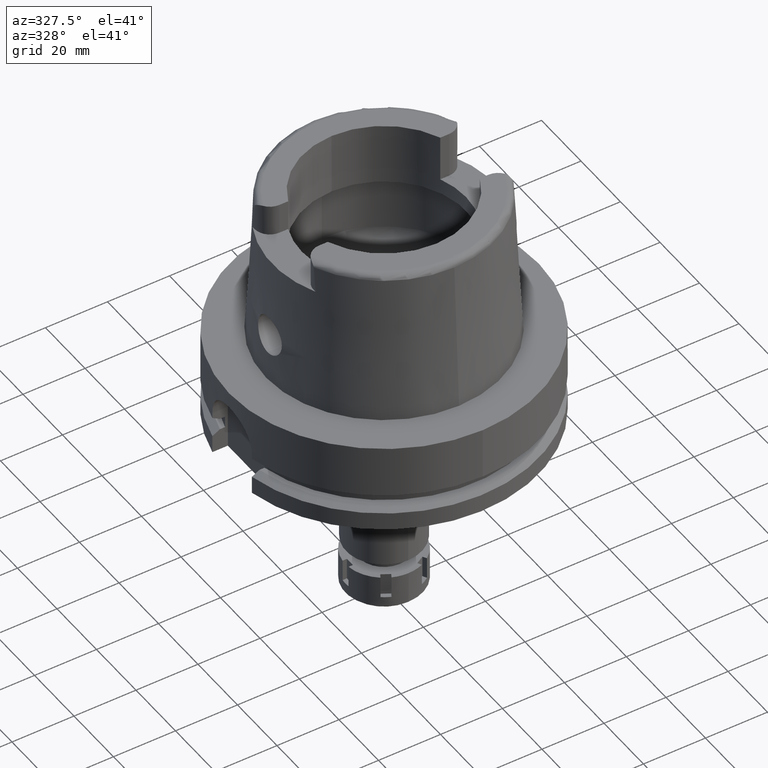
[diagram: clean part render]
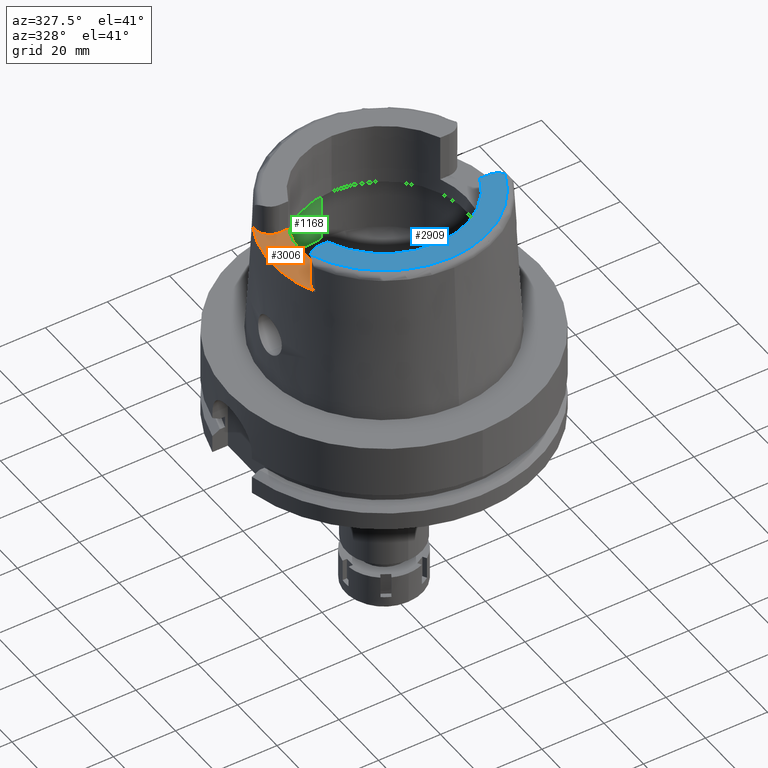
[diagram: same view with three faces highlighted in distinct colors, each labeled with its STEP entity id]
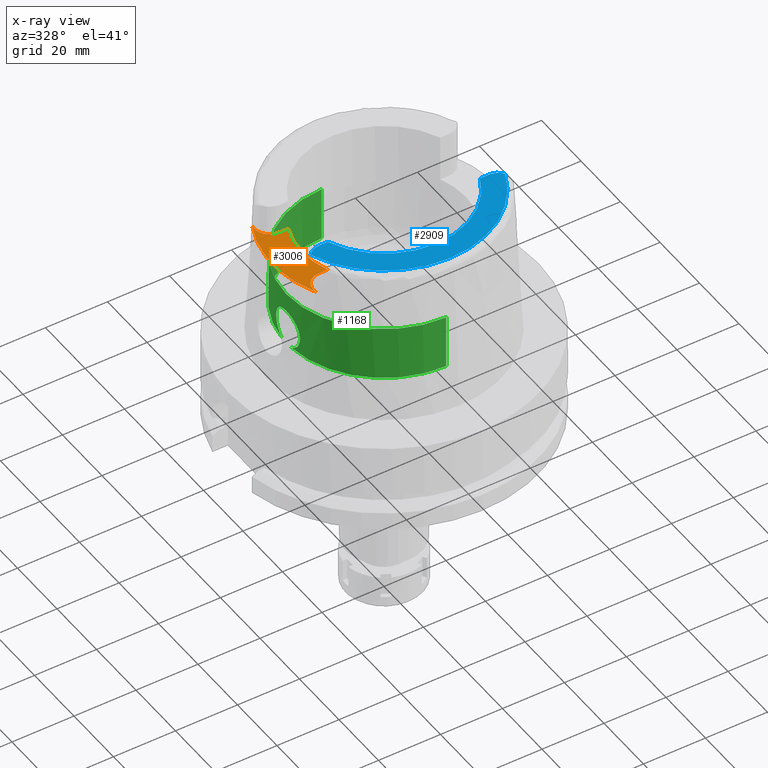
[diagram: x-ray of the same camera — body ghosted, the three highlighted faces saturated]
A machine part, auxiliary view with three faces highlighted in distinct colors.
The next image is the same camera in x-ray (body ghosted, the three faces saturated) — at least one of them is partly hidden behind the body in this view.
Their STEP definitions:

[orange] entity #3006 — the highlighted planar face has unit normal (0, 0, 1).
#35 = DIRECTION ( 'NONE',  ( 1.000000000000000000, 1.442003377036999905E-13, 0.0000000000000000000 ) ) ;
#81 = EDGE_CURVE ( 'NONE', #5457, #1436, #5247, .T. ) ;
#135 = ORIENTED_EDGE ( 'NONE', *, *, #770, .F. ) ;
#330 = ORIENTED_EDGE ( 'NONE', *, *, #2232, .F. ) ;
#358 = VECTOR ( 'NONE', #35, 1000.000000000000000 ) ;
#403 = DIRECTION ( 'NONE',  ( 0.0000000000000000000, 0.0000000000000000000, 1.000000000000000000 ) ) ;
#420 = CARTESIAN_POINT ( 'NONE',  ( -32.25000000000000000, -14.89000000000000057, 40.00000000000000000 ) ) ;
#422 = CARTESIAN_POINT ( 'NONE',  ( -32.24999999999000266, 15.99793480980999938, 40.00000000000000000 ) ) ;
#465 = CARTESIAN_POINT ( 'NONE',  ( -27.36999999999999744, 10.00999999999999979, 40.00000000000000000 ) ) ;
#525 = VERTEX_POINT ( 'NONE', #2066 ) ;
#636 = CARTESIAN_POINT ( 'NONE',  ( -24.53670515777999839, 10.00999999999999979, 40.00000000000000000 ) ) ;
#723 = ORIENTED_EDGE ( 'NONE', *, *, #81, .F. ) ;
#767 = CARTESIAN_POINT ( 'NONE',  ( 0.0000000000000000000, 0.0000000000000000000, 40.00000000000000000 ) ) ;
#770 = EDGE_CURVE ( 'NONE', #3933, #1331, #4884, .T. ) ;
#830 = CARTESIAN_POINT ( 'NONE',  ( 0.0000000000000000000, 0.0000000000000000000, 40.00000000000000000 ) ) ;
#837 = LINE ( 'NONE', #2716, #4207 ) ;
#934 = VECTOR ( 'NONE', #2135, 1000.000000000000000 ) ;
#1031 = AXIS2_PLACEMENT_3D ( 'NONE', #3721, #403, #2742 ) ;
#1164 = CARTESIAN_POINT ( 'NONE',  ( -32.24999876011999334, -15.99794043148000000, 40.00000000000000000 ) ) ;
#1191 = CIRCLE ( 'NONE', #5459, 26.50000000000000711 ) ;
#1265 = EDGE_CURVE ( 'NONE', #4605, #3933, #5700, .T. ) ;
#1331 = VERTEX_POINT ( 'NONE', #422 ) ;
#1436 = VERTEX_POINT ( 'NONE', #636 ) ;
#1441 = CARTESIAN_POINT ( 'NONE',  ( 0.0000000000000000000, 0.0000000000000000000, 40.00000000000000000 ) ) ;
#1527 = AXIS2_PLACEMENT_3D ( 'NONE', #767, #2285, #3239 ) ;
#1676 = EDGE_LOOP ( 'NONE', ( #723, #330, #3696, #135, #4647, #3988, #5839, #5504 ) ) ;
#1722 = CIRCLE ( 'NONE', #1031, 4.880000000000002558 ) ;
#2058 = EDGE_CURVE ( 'NONE', #1331, #5209, #837, .T. ) ;
#2066 = CARTESIAN_POINT ( 'NONE',  ( -27.36999999999999744, -10.00999999999999979, 40.00000000000000000 ) ) ;
#2135 = DIRECTION ( 'NONE',  ( -1.000000000000000000, 1.435733797136999970E-13, 0.0000000000000000000 ) ) ;
#2162 = LINE ( 'NONE', #3053, #934 ) ;
#2232 = EDGE_CURVE ( 'NONE', #5209, #5457, #1722, .T. ) ;
#2244 = CARTESIAN_POINT ( 'NONE',  ( -27.36999999999999744, -14.89000000000000057, 40.00000000000000000 ) ) ;
#2285 = DIRECTION ( 'NONE',  ( 0.0000000000000000000, 0.0000000000000000000, -1.000000000000000000 ) ) ;
#2329 = VERTEX_POINT ( 'NONE', #3959 ) ;
#2338 = DIRECTION ( 'NONE',  ( 1.119083709707969931E-06, -0.9999999999993738342, -1.731560047848954504E-13 ) ) ;
#2492 = EDGE_CURVE ( 'NONE', #2329, #525, #2162, .T. ) ;
#2604 = VECTOR ( 'NONE', #2338, 1000.000000000000000 ) ;
#2695 = EDGE_CURVE ( 'NONE', #1436, #2329, #1191, .T. ) ;
#2709 = DIRECTION ( 'NONE',  ( 0.0000000000000000000, 0.0000000000000000000, 1.000000000000000000 ) ) ;
#2716 = CARTESIAN_POINT ( 'NONE',  ( -32.25000534596000534, 15.99791057084999935, 40.00000000000000000 ) ) ;
#2742 = DIRECTION ( 'NONE',  ( -1.000000000000000000, -1.173071203017102553E-14, 0.0000000000000000000 ) ) ;
#2753 = DIRECTION ( 'NONE',  ( 0.0000000000000000000, 1.000000000000000000, 0.0000000000000000000 ) ) ;
#2757 = CARTESIAN_POINT ( 'NONE',  ( -32.25000000000000000, -14.89000000000000057, 40.00000000000000000 ) ) ;
#3006 = ADVANCED_FACE ( 'NONE', ( #3796 ), #5698, .T. ) ;
#3053 = CARTESIAN_POINT ( 'NONE',  ( -24.53670515777999839, -10.00999999999999979, 40.00000000000000000 ) ) ;
#3239 = DIRECTION ( 'NONE',  ( -0.8958345712659759874, -0.4443876921390880197, 0.0000000000000000000 ) ) ;
#3331 = DIRECTION ( 'NONE',  ( 0.0000000000000000000, 0.0000000000000000000, 1.000000000000000000 ) ) ;
#3472 = AXIS2_PLACEMENT_3D ( 'NONE', #2244, #4198, #2753 ) ;
#3696 = ORIENTED_EDGE ( 'NONE', *, *, #2058, .F. ) ;
#3721 = CARTESIAN_POINT ( 'NONE',  ( -27.36999999999999744, 14.89000000000000057, 40.00000000000000000 ) ) ;
#3796 = FACE_OUTER_BOUND ( 'NONE', #1676, .T. ) ;
#3933 = VERTEX_POINT ( 'NONE', #1164 ) ;
#3959 = CARTESIAN_POINT ( 'NONE',  ( -24.53670515777999839, -10.00999999999999979, 40.00000000000000000 ) ) ;
#3988 = ORIENTED_EDGE ( 'NONE', *, *, #5650, .F. ) ;
#4198 = DIRECTION ( 'NONE',  ( 0.0000000000000000000, 0.0000000000000000000, 1.000000000000000000 ) ) ;
#4207 = VECTOR ( 'NONE', #4623, 1000.000000000000114 ) ;
#4413 = CARTESIAN_POINT ( 'NONE',  ( -27.36999999999999744, 10.00999999999999979, 40.00000000000000000 ) ) ;
#4605 = VERTEX_POINT ( 'NONE', #420 ) ;
#4615 = DIRECTION ( 'NONE',  ( -0.9259134021805098813, 0.3777358490566039562, 0.0000000000000000000 ) ) ;
#4623 = DIRECTION ( 'NONE',  ( 4.825266097350802439E-06, -0.9999999999883583124, 1.731606717192930698E-13 ) ) ;
#4647 = ORIENTED_EDGE ( 'NONE', *, *, #1265, .F. ) ;
#4884 = CIRCLE ( 'NONE', #1527, 35.99995025243999436 ) ;
#5043 = AXIS2_PLACEMENT_3D ( 'NONE', #1441, #3331, #5227 ) ;
#5209 = VERTEX_POINT ( 'NONE', #5453 ) ;
#5227 = DIRECTION ( 'NONE',  ( 1.000000000000000000, 0.0000000000000000000, 0.0000000000000000000 ) ) ;
#5247 = LINE ( 'NONE', #4413, #358 ) ;
#5354 = CIRCLE ( 'NONE', #3472, 4.879999999999999005 ) ;
#5453 = CARTESIAN_POINT ( 'NONE',  ( -32.25000000000000000, 14.89000000000000057, 40.00000000000000000 ) ) ;
#5457 = VERTEX_POINT ( 'NONE', #465 ) ;
#5459 = AXIS2_PLACEMENT_3D ( 'NONE', #830, #2709, #4615 ) ;
#5504 = ORIENTED_EDGE ( 'NONE', *, *, #2695, .F. ) ;
#5650 = EDGE_CURVE ( 'NONE', #525, #4605, #5354, .T. ) ;
#5698 = PLANE ( 'NONE',  #5043 ) ;
#5700 = LINE ( 'NONE', #2757, #2604 ) ;
#5839 = ORIENTED_EDGE ( 'NONE', *, *, #2492, .F. ) ;

[blue] entity #2909 — the highlighted planar face has unit normal (0, 0, 1).
#56 = EDGE_CURVE ( 'NONE', #4841, #4735, #5213, .T. ) ;
#99 = CARTESIAN_POINT ( 'NONE',  ( 0.0000000000000000000, -26.50000000000000000, 50.00000000000000000 ) ) ;
#240 = CARTESIAN_POINT ( 'NONE',  ( 27.36999999999999744, -10.00999999999999979, 50.00000000000000000 ) ) ;
#307 = EDGE_CURVE ( 'NONE', #312, #4841, #329, .T. ) ;
#312 = VERTEX_POINT ( 'NONE', #1918 ) ;
#322 = EDGE_CURVE ( 'NONE', #2450, #2839, #3813, .T. ) ;
#329 = CIRCLE ( 'NONE', #2115, 4.879999999999999005 ) ;
#446 = CARTESIAN_POINT ( 'NONE',  ( 0.0000000000000000000, 0.0000000000000000000, 50.00000000000000000 ) ) ;
#510 = AXIS2_PLACEMENT_3D ( 'NONE', #4725, #876, #2756 ) ;
#876 = DIRECTION ( 'NONE',  ( 0.0000000000000000000, 0.0000000000000000000, 1.000000000000000000 ) ) ;
#983 = DIRECTION ( 'NONE',  ( -0.8163632566568778115, 0.5775387720149849358, 0.0000000000000000000 ) ) ;
#1340 = DIRECTION ( 'NONE',  ( 0.0000000000000000000, 0.0000000000000000000, 1.000000000000000000 ) ) ;
#1361 = CARTESIAN_POINT ( 'NONE',  ( -27.36999999999999744, -14.89000000000000057, 50.00000000000000000 ) ) ;
#1369 = ORIENTED_EDGE ( 'NONE', *, *, #307, .F. ) ;
#1425 = DIRECTION ( 'NONE',  ( 0.0000000000000000000, 1.000000000000000000, 0.0000000000000000000 ) ) ;
#1595 = CIRCLE ( 'NONE', #5065, 26.50000000000000711 ) ;
#1786 = CARTESIAN_POINT ( 'NONE',  ( -24.53670515777999839, -10.00999999999999979, 50.00000000000000000 ) ) ;
#1918 = CARTESIAN_POINT ( 'NONE',  ( 27.36999999999999744, -10.00999999999999979, 50.00000000000000000 ) ) ;
#1976 = DIRECTION ( 'NONE',  ( -1.000000000000000000, 1.442003377036999905E-13, 0.0000000000000000000 ) ) ;
#2031 = AXIS2_PLACEMENT_3D ( 'NONE', #2422, #4781, #4318 ) ;
#2085 = ORIENTED_EDGE ( 'NONE', *, *, #322, .T. ) ;
#2093 = EDGE_CURVE ( 'NONE', #4735, #2839, #6100, .T. ) ;
#2106 = ORIENTED_EDGE ( 'NONE', *, *, #4673, .F. ) ;
#2115 = AXIS2_PLACEMENT_3D ( 'NONE', #3434, #5381, #1425 ) ;
#2190 = AXIS2_PLACEMENT_3D ( 'NONE', #3202, #6103, #4167 ) ;
#2206 = ORIENTED_EDGE ( 'NONE', *, *, #2093, .F. ) ;
#2422 = CARTESIAN_POINT ( 'NONE',  ( 0.0000000000000000000, 0.0000000000000000000, 50.00000000000000000 ) ) ;
#2450 = VERTEX_POINT ( 'NONE', #1786 ) ;
#2567 = ORIENTED_EDGE ( 'NONE', *, *, #3864, .T. ) ;
#2756 = DIRECTION ( 'NONE',  ( 1.000000000000000000, 0.0000000000000000000, 0.0000000000000000000 ) ) ;
#2839 = VERTEX_POINT ( 'NONE', #3365 ) ;
#2909 = ADVANCED_FACE ( 'NONE', ( #5633 ), #5131, .T. ) ;
#3062 = VECTOR ( 'NONE', #3522, 1000.000000000000000 ) ;
#3125 = VERTEX_POINT ( 'NONE', #99 ) ;
#3202 = CARTESIAN_POINT ( 'NONE',  ( 0.0000000000000000000, 0.0000000000000000000, 50.00000000000000000 ) ) ;
#3207 = AXIS2_PLACEMENT_3D ( 'NONE', #1361, #3283, #983 ) ;
#3215 = CARTESIAN_POINT ( 'NONE',  ( 24.53670515777999839, -10.00999999999999979, 50.00000000000000000 ) ) ;
#3283 = DIRECTION ( 'NONE',  ( 0.0000000000000000000, 0.0000000000000000000, -1.000000000000000000 ) ) ;
#3365 = CARTESIAN_POINT ( 'NONE',  ( -27.36999999999999744, -10.00999999999999979, 50.00000000000000000 ) ) ;
#3405 = CARTESIAN_POINT ( 'NONE',  ( -24.53670515777999839, -10.00999999999999979, 50.00000000000000000 ) ) ;
#3434 = CARTESIAN_POINT ( 'NONE',  ( 27.36999999999999744, -14.89000000000000057, 50.00000000000000000 ) ) ;
#3522 = DIRECTION ( 'NONE',  ( -1.000000000000000000, -1.454542536837999925E-13, 0.0000000000000000000 ) ) ;
#3813 = LINE ( 'NONE', #3405, #4977 ) ;
#3851 = ORIENTED_EDGE ( 'NONE', *, *, #4933, .F. ) ;
#3864 = EDGE_CURVE ( 'NONE', #312, #5433, #5039, .T. ) ;
#4167 = DIRECTION ( 'NONE',  ( 0.0000000000000000000, -1.000000000000000000, 0.0000000000000000000 ) ) ;
#4318 = DIRECTION ( 'NONE',  ( 0.9332215253017949186, -0.3593015233941980191, 0.0000000000000000000 ) ) ;
#4353 = CARTESIAN_POINT ( 'NONE',  ( -31.35385269249000473, -12.07161079256999869, 50.00000000000000000 ) ) ;
#4564 = EDGE_LOOP ( 'NONE', ( #5624, #1369, #2567, #2106, #3851, #2085, #2206 ) ) ;
#4673 = EDGE_CURVE ( 'NONE', #3125, #5433, #5265, .T. ) ;
#4691 = CARTESIAN_POINT ( 'NONE',  ( 31.35385269249000473, -12.07161079256999869, 50.00000000000000000 ) ) ;
#4725 = CARTESIAN_POINT ( 'NONE',  ( 0.0000000000000000000, 0.0000000000000000000, 50.00000000000000000 ) ) ;
#4735 = VERTEX_POINT ( 'NONE', #4353 ) ;
#4781 = DIRECTION ( 'NONE',  ( 0.0000000000000000000, 0.0000000000000000000, -1.000000000000000000 ) ) ;
#4841 = VERTEX_POINT ( 'NONE', #4691 ) ;
#4933 = EDGE_CURVE ( 'NONE', #2450, #3125, #1595, .T. ) ;
#4977 = VECTOR ( 'NONE', #1976, 1000.000000000000000 ) ;
#5039 = LINE ( 'NONE', #240, #3062 ) ;
#5065 = AXIS2_PLACEMENT_3D ( 'NONE', #446, #1340, #6030 ) ;
#5131 = PLANE ( 'NONE',  #510 ) ;
#5213 = CIRCLE ( 'NONE', #2031, 33.59743838135999994 ) ;
#5265 = CIRCLE ( 'NONE', #2190, 26.50000000000000000 ) ;
#5381 = DIRECTION ( 'NONE',  ( 0.0000000000000000000, 0.0000000000000000000, -1.000000000000000000 ) ) ;
#5433 = VERTEX_POINT ( 'NONE', #3215 ) ;
#5624 = ORIENTED_EDGE ( 'NONE', *, *, #56, .F. ) ;
#5633 = FACE_OUTER_BOUND ( 'NONE', #4564, .T. ) ;
#6030 = DIRECTION ( 'NONE',  ( -0.9259134021805098813, -0.3777358490566039562, 0.0000000000000000000 ) ) ;
#6100 = CIRCLE ( 'NONE', #3207, 4.880000000000001670 ) ;
#6103 = DIRECTION ( 'NONE',  ( 0.0000000000000000000, 0.0000000000000000000, 1.000000000000000000 ) ) ;

[green] entity #1168 — the highlighted cylindrical surface (partial cylindrical patch) has radius 31.5 mm, axis along (0, 0, 1).
#8 = AXIS2_PLACEMENT_3D ( 'NONE', #2917, #5253, #541 ) ;
#21 = CARTESIAN_POINT ( 'NONE',  ( -31.47874576205621366, -1.163164667398491892, 20.88863052712523327 ) ) ;
#57 = CARTESIAN_POINT ( 'NONE',  ( -31.35601783974591683, -3.006815720286887927, 20.19503842170220409 ) ) ;
#102 = CARTESIAN_POINT ( 'NONE',  ( -30.94471645955824002, 5.888636474618355265, 16.15098327759531216 ) ) ;
#117 = CARTESIAN_POINT ( 'NONE',  ( -31.27265209056451312, -3.777709567707239646, 19.66144031637848499 ) ) ;
#146 = CARTESIAN_POINT ( 'NONE',  ( -31.04449650653337045, -5.337616494897189590, 12.25957888859942102 ) ) ;
#162 = CARTESIAN_POINT ( 'NONE',  ( -31.28064360406172639, 3.709026607153624866, 10.28274522997729967 ) ) ;
#173 = CARTESIAN_POINT ( 'NONE',  ( -31.07990292945990518, -5.127433926418876631, 18.11601709967759177 ) ) ;
#188 = CARTESIAN_POINT ( 'NONE',  ( -31.23333518499545391, 4.089872077769675762, 10.60987740590880435 ) ) ;
#204 = CARTESIAN_POINT ( 'NONE',  ( -30.92613444810705303, -5.986400588430251801, 15.52780896318722093 ) ) ;
#221 = CARTESIAN_POINT ( 'NONE',  ( -30.94201439792267294, 5.902945667035329080, 13.92002647119419123 ) ) ;
#236 = CARTESIAN_POINT ( 'NONE',  ( -30.99449541047082590, -5.622045063139270660, 12.89669549586074915 ) ) ;
#279 = CARTESIAN_POINT ( 'NONE',  ( -31.42878496215235273, 2.115845638463134559, 20.61478128232596774 ) ) ;
#311 = CARTESIAN_POINT ( 'NONE',  ( -31.26626258548840553, 3.829281940749599933, 19.61924281483721089 ) ) ;
#344 = CARTESIAN_POINT ( 'NONE',  ( -31.10650468077717434, 4.964778793534160073, 18.37349596803345264 ) ) ;
#522 = CARTESIAN_POINT ( 'NONE',  ( -31.47210381269876223, -1.331344791824478069, 20.85299962596788248 ) ) ;
#541 = DIRECTION ( 'NONE',  ( -0.9971171061384295209, 0.07587803796965221503, 0.0000000000000000000 ) ) ;
#577 = CARTESIAN_POINT ( 'NONE',  ( -31.20452329170047179, -4.305544797542280477, 10.82083252448605570 ) ) ;
#585 = DIRECTION ( 'NONE',  ( 0.0000000000000000000, -4.980251297749999745E-14, 1.000000000000000000 ) ) ;
#597 = ORIENTED_EDGE ( 'NONE', *, *, #1984, .F. ) ;
#601 = CARTESIAN_POINT ( 'NONE',  ( 0.0000000000000000000, 0.0000000000000000000, 27.11662432702999936 ) ) ;
#611 = CARTESIAN_POINT ( 'NONE',  ( -30.94709211533588444, -5.876117804883213225, 16.21299367276633774 ) ) ;
#629 = CARTESIAN_POINT ( 'NONE',  ( -31.30724070861284858, 3.477866724541691656, 10.10695117561378353 ) ) ;
#645 = CARTESIAN_POINT ( 'NONE',  ( -31.09185261177341886, -5.054302491121672070, 18.23376901658432558 ) ) ;
#660 = CARTESIAN_POINT ( 'NONE',  ( -30.92513526102646892, 5.990966511013538387, 14.52808313734671053 ) ) ;
#671 = CARTESIAN_POINT ( 'NONE',  ( -31.36791494009913350, -2.890011759063409347, 9.730801291595630786 ) ) ;
#686 = CARTESIAN_POINT ( 'NONE',  ( -31.06313410853857704, 5.229627001568299960, 12.05814847432241876 ) ) ;
#691 = VERTEX_POINT ( 'NONE', #5012 ) ;
#704 = CARTESIAN_POINT ( 'NONE',  ( -30.93075452679259385, -5.961645088706509554, 14.32035475999165897 ) ) ;
#719 = CARTESIAN_POINT ( 'NONE',  ( -30.93370143693034535, 5.946638204842351172, 15.80298496147072562 ) ) ;
#775 = CARTESIAN_POINT ( 'NONE',  ( -31.24473887855458898, 4.000517461553408260, 19.47311214295667270 ) ) ;
#805 = CARTESIAN_POINT ( 'NONE',  ( -31.04979418184183615, 5.307644725595953794, 17.79955785709676519 ) ) ;
#862 = CARTESIAN_POINT ( 'NONE',  ( -31.50000000000000000, 0.6498053781861014011, 21.00000000000000355 ) ) ;
#927 = AXIS2_PLACEMENT_3D ( 'NONE', #601, #5293, #3979 ) ;
#975 = CARTESIAN_POINT ( 'NONE',  ( -31.43690018384860707, -1.991219061995582518, 20.65995381132229625 ) ) ;
#1002 = VECTOR ( 'NONE', #4194, 1000.000000000000000 ) ;
#1009 = CARTESIAN_POINT ( 'NONE',  ( -31.43755918976141928, -1.980796468822430878, 20.66360978954737249 ) ) ;
#1034 = EDGE_CURVE ( 'NONE', #3825, #4508, #2700, .T. ) ;
#1040 = CARTESIAN_POINT ( 'NONE',  ( -31.27987526754514391, -3.717429863276028090, 19.70975714542835178 ) ) ;
#1055 = CARTESIAN_POINT ( 'NONE',  ( -30.94672047930768599, 5.878078287982104300, 16.20345762505546006 ) ) ;
#1069 = CARTESIAN_POINT ( 'NONE',  ( -30.93223130495344009, -5.953905832132409870, 14.25740174167302321 ) ) ;
#1088 = EDGE_LOOP ( 'NONE', ( #597, #5038, #2137, #4968, #4153, #4987, #2149 ) ) ;
#1103 = CARTESIAN_POINT ( 'NONE',  ( -31.13176651339349021, -4.810074858912181561, 11.40940082015882773 ) ) ;
#1109 = LINE ( 'NONE', #5898, #1330 ) ;
#1119 = CARTESIAN_POINT ( 'NONE',  ( -31.04516689537108931, 5.333719709568526035, 12.25201121742554911 ) ) ;
#1133 = CARTESIAN_POINT ( 'NONE',  ( -31.27377673705211691, -3.781460887650067715, 10.32187396017581094 ) ) ;
#1149 = CARTESIAN_POINT ( 'NONE',  ( -31.32349421944227075, 3.326977616329962917, 10.00394166358660897 ) ) ;
#1159 = CARTESIAN_POINT ( 'NONE',  ( -30.94815925833522030, -5.870505071418349097, 16.23986343965928469 ) ) ;
#1168 = ADVANCED_FACE ( 'NONE', ( #1749 ), #2155, .F. ) ;
#1176 = CARTESIAN_POINT ( 'NONE',  ( -30.94203852206839045, 5.902744183293309632, 16.07741215374334232 ) ) ;
#1192 = CARTESIAN_POINT ( 'NONE',  ( -31.21270270120839641, -4.245397372679452275, 10.75940961850082722 ) ) ;
#1205 = CARTESIAN_POINT ( 'NONE',  ( -30.97629757939798978, 5.723226995991479882, 16.83354071605763380 ) ) ;
#1237 = CARTESIAN_POINT ( 'NONE',  ( -31.06681967326416327, 5.206432106374131230, 17.98277394314262878 ) ) ;
#1264 = CARTESIAN_POINT ( 'NONE',  ( -31.43466007979952437, 2.026249571673537808, 20.64751295058228919 ) ) ;
#1329 = CARTESIAN_POINT ( 'NONE',  ( -31.43628422217685525, 2.000932791771328656, 20.65653503280802994 ) ) ;
#1330 = VECTOR ( 'NONE', #585, 1000.000000000000000 ) ;
#1439 = EDGE_CURVE ( 'NONE', #2263, #691, #3305, .T. ) ;
#1475 = CARTESIAN_POINT ( 'NONE',  ( -31.30795952073254895, -3.472431625569194935, 19.89404409314868261 ) ) ;
#1507 = CARTESIAN_POINT ( 'NONE',  ( -31.28796342648756124, -3.648789918759877793, 19.76346963143531354 ) ) ;
#1526 = CARTESIAN_POINT ( 'NONE',  ( -31.04850011745189775, 5.314376854692951291, 12.21473573737289442 ) ) ;
#1541 = CARTESIAN_POINT ( 'NONE',  ( -31.03979696984738368, -5.364900058779026537, 12.31322412810125932 ) ) ;
#1564 = CARTESIAN_POINT ( 'NONE',  ( -30.93325863414992227, -5.948525657675966194, 14.21546871882550178 ) ) ;
#1580 = CARTESIAN_POINT ( 'NONE',  ( -30.94650110748277072, 5.879596500666405490, 13.80125168597936636 ) ) ;
#1598 = CARTESIAN_POINT ( 'NONE',  ( -31.22685469610265940, -4.139113351467307744, 10.65627274409956193 ) ) ;
#1616 = CARTESIAN_POINT ( 'NONE',  ( -30.92535214902903107, 5.990466605831480607, 15.37852798020788825 ) ) ;
#1630 = CARTESIAN_POINT ( 'NONE',  ( -31.23134568345604123, -4.105029714573823263, 10.62405312733381635 ) ) ;
#1634 = EDGE_CURVE ( 'NONE', #5597, #4508, #5989, .T. ) ;
#1647 = CARTESIAN_POINT ( 'NONE',  ( -30.93486335739982707, 5.940124237771656546, 14.15424058503558236 ) ) ;
#1655 = CARTESIAN_POINT ( 'NONE',  ( -31.40918884336000616, -2.390158196043999705, 9.496624327025999790 ) ) ;
#1657 = CARTESIAN_POINT ( 'NONE',  ( -31.06174892841058721, -5.237171748031388852, 12.06547958376455476 ) ) ;
#1671 = CARTESIAN_POINT ( 'NONE',  ( -31.41205979542451132, 2.351912828772885433, 20.52041466345677279 ) ) ;
#1703 = CARTESIAN_POINT ( 'NONE',  ( -31.00961732978991847, 5.538953753594051399, 17.31285343608671923 ) ) ;
#1734 = CARTESIAN_POINT ( 'NONE',  ( -31.43292578854782349, 2.053063081898762299, 20.63786886503536877 ) ) ;
#1749 = FACE_OUTER_BOUND ( 'NONE', #1088, .T. ) ;
#1762 = CARTESIAN_POINT ( 'NONE',  ( -31.34171231230149246, 3.171484425348980896, 20.10473325897044461 ) ) ;
#1770 = DIRECTION ( 'NONE',  ( 0.0000000000000000000, -1.000000000000000000, 0.0000000000000000000 ) ) ;
#1797 = CARTESIAN_POINT ( 'NONE',  ( -31.09270502904777445, 5.049671679847165251, 18.24345811292764097 ) ) ;
#1912 = CARTESIAN_POINT ( 'NONE',  ( -31.45367240323188796, -1.709128341452814670, 20.75259253077138411 ) ) ;
#1984 = EDGE_CURVE ( 'NONE', #3786, #3825, #5069, .T. ) ;
#1991 = CARTESIAN_POINT ( 'NONE',  ( -31.06852275269079300, 5.198271954087847035, 12.00290348995803669 ) ) ;
#2003 = CARTESIAN_POINT ( 'NONE',  ( -30.96378076328567275, -5.788289250652490558, 16.58184719940631169 ) ) ;
#2032 = CARTESIAN_POINT ( 'NONE',  ( -31.08512885621637523, -5.105021580318198637, 11.82893627642930490 ) ) ;
#2049 = CARTESIAN_POINT ( 'NONE',  ( -31.04543620940972204, 5.332154695723875015, 12.24897677462629453 ) ) ;
#2061 = CARTESIAN_POINT ( 'NONE',  ( -30.93383822146053674, -5.945492396763111032, 14.19284567889253168 ) ) ;
#2096 = CARTESIAN_POINT ( 'NONE',  ( -30.94254149929653863, -5.899972280016023696, 13.86550485415403955 ) ) ;
#2114 = CARTESIAN_POINT ( 'NONE',  ( -31.24965941995577268, 3.963184621932520191, 10.49466748889835266 ) ) ;
#2120 = AXIS2_PLACEMENT_3D ( 'NONE', #3610, #5978, #3110 ) ;
#2129 = CARTESIAN_POINT ( 'NONE',  ( -31.08257039171106229, -5.111203625415624785, 18.14256472674709286 ) ) ;
#2137 = ORIENTED_EDGE ( 'NONE', *, *, #2434, .T. ) ;
#2149 = ORIENTED_EDGE ( 'NONE', *, *, #1034, .F. ) ;
#2155 = CYLINDRICAL_SURFACE ( 'NONE', #2120, 31.50000000000000000 ) ;
#2203 = CARTESIAN_POINT ( 'NONE',  ( -31.39506517119842499, 2.572660064936040936, 20.42285056339404647 ) ) ;
#2231 = CARTESIAN_POINT ( 'NONE',  ( -31.16668086260606785, 4.570397163301239907, 18.88748961501066859 ) ) ;
#2262 = CARTESIAN_POINT ( 'NONE',  ( -31.38258772729139778, 2.721727948456820201, 20.34989259246918181 ) ) ;
#2263 = VERTEX_POINT ( 'NONE', #4373 ) ;
#2410 = CARTESIAN_POINT ( 'NONE',  ( -31.43650139800132592, -1.997495828617659841, 20.65774069110176470 ) ) ;
#2434 = EDGE_CURVE ( 'NONE', #5025, #2263, #1109, .T. ) ;
#2444 = CARTESIAN_POINT ( 'NONE',  ( -31.50000000000000000, 0.0000000000000000000, 21.00000000000000000 ) ) ;
#2464 = CARTESIAN_POINT ( 'NONE',  ( -31.04640734176451389, -5.330442608378263003, 17.78046875900859547 ) ) ;
#2480 = CARTESIAN_POINT ( 'NONE',  ( -31.05577131272298530, 5.272304599468834674, 12.13579392255276090 ) ) ;
#2493 = CARTESIAN_POINT ( 'NONE',  ( -31.04292108156049323, -5.346773340610348590, 12.27745611900884271 ) ) ;
#2511 = CARTESIAN_POINT ( 'NONE',  ( -31.08612902597297634, 5.094440502597158194, 11.82743776071365716 ) ) ;
#2525 = CARTESIAN_POINT ( 'NONE',  ( -31.11662495119724170, -4.898526145465122106, 18.46580947619208146 ) ) ;
#2550 = CARTESIAN_POINT ( 'NONE',  ( -31.01915017969078647, -5.486385384716531810, 17.45290592689202569 ) ) ;
#2581 = CARTESIAN_POINT ( 'NONE',  ( -30.94929144269002919, -5.864552954794404194, 16.26793568256432820 ) ) ;
#2598 = CARTESIAN_POINT ( 'NONE',  ( -31.09978699592842588, 5.012223274540713369, 11.69742067411299047 ) ) ;
#2628 = CARTESIAN_POINT ( 'NONE',  ( -31.15164714183654837, 4.671955733783661024, 18.76497636827070536 ) ) ;
#2652 = CARTESIAN_POINT ( 'NONE',  ( -31.27138877838820008, 3.787830209734968090, 19.65322009042904483 ) ) ;
#2682 = CARTESIAN_POINT ( 'NONE',  ( -31.04260824685747266, 5.349746934709131096, 17.71815787101869688 ) ) ;
#2700 = B_SPLINE_CURVE_WITH_KNOTS ( 'NONE', 3,
 ( #5235, #3773, #4272, #21, #522, #3863, #1912, #4830, #5300, #3807, #1009, #975, #2410, #4306, #4333, #57, #3836, #5732, #1475, #5766, #1507, #1040, #2927, #4365, #117, #5416, #4885, #3044, #4940, #2525, #4425, #645, #4487, #2129, #5325, #173, #2464, #2550, #4858, #3897, #2003, #3429, #5388, #2581, #1159, #3518, #611, #3018, #204, #3925, #3079, #5824, #5798, #704, #1069, #1564, #2061, #2096, #2949, #3457, #236, #5857, #4398, #4018, #1541, #2493, #146, #5919, #3548, #5888, #1657, #2032, #1103, #5446, #5356, #2982, #577, #1192, #3949, #1598, #3490, #1630, #1133, #4914, #671, #4453, #3985 ),
 .UNSPECIFIED., .F., .F.,
 ( 4, 2, 2, 1, 1, 1, 1, 2, 2, 2, 2, 2, 1, 1, 2, 2, 2, 2, 1, 1, 1, 2, 2, 2, 2, 1, 1, 1, 2, 2, 2, 2, 1, 1, 2, 2, 2, 2, 1, 1, 1, 1, 1, 2, 2, 2, 2, 2, 1, 1, 2, 2, 2, 4 ),
 ( 0.0000000000000000000, 0.06249999999999669709, 0.09374999999999507339, 0.1093749999999942407, 0.1171874999999938383, 0.1210937499999936162, 0.1230468749999934774, 0.1240234374999933248, 0.1249999999999931583, 0.1874999999999945877, 0.2187499999999953648, 0.2343749999999957812, 0.2421874999999957534, 0.2460937499999957256, 0.2480468749999957534, 0.2499999999999957812, 0.3125000000000008882, 0.3437500000000032196, 0.3593750000000041078, 0.3671875000000046074, 0.3710937500000048850, 0.3730468750000049405, 0.3750000000000049960, 0.4375000000000113798, 0.4687500000000143219, 0.4843750000000154321, 0.4921875000000159317, 0.4960937500000162648, 0.4980468750000167644, 0.5000000000000172085, 0.5625000000000310862, 0.5937500000000379696, 0.6093750000000415223, 0.6171875000000430767, 0.6210937500000439648, 0.6250000000000448530, 0.6875000000000590639, 0.7187500000000659472, 0.7343750000000695000, 0.7421875000000713873, 0.7460937500000723865, 0.7480468750000728306, 0.7490234375000730527, 0.7495117187500731637, 0.7500000000000732747, 0.8125000000000567324, 0.8437500000000482947, 0.8593750000000441869, 0.8671875000000421885, 0.8710937500000410783, 0.8730468750000404121, 0.8750000000000397460, 0.9375000000000199840, 1.000000000000000000 ),
 .UNSPECIFIED. ) ;
#2866 = CIRCLE ( 'NONE', #8, 31.49999999999998934 ) ;
#2917 = CARTESIAN_POINT ( 'NONE',  ( 0.0000000000000000000, 0.0000000000000000000, 9.496624327025999790 ) ) ;
#2927 = CARTESIAN_POINT ( 'NONE',  ( -31.27636264282328327, -3.746839878406893032, 19.68629373314421471 ) ) ;
#2949 = CARTESIAN_POINT ( 'NONE',  ( -30.95594804822716384, -5.831170078700002257, 13.54648142384104936 ) ) ;
#2982 = CARTESIAN_POINT ( 'NONE',  ( -31.18852596535550958, -4.421805925736858711, 10.94287546120822796 ) ) ;
#3002 = CARTESIAN_POINT ( 'NONE',  ( -30.93438270671207491, 5.942631215139559053, 14.17200177640525460 ) ) ;
#3018 = CARTESIAN_POINT ( 'NONE',  ( -30.93367005004988357, -5.946768138643058421, 15.86763719998065092 ) ) ;
#3023 = CARTESIAN_POINT ( 'NONE',  ( -31.40918884336000616, 2.390158196043999705, 9.496624327025999790 ) ) ;
#3033 = CARTESIAN_POINT ( 'NONE',  ( -31.23702435164132041, 4.061563625475648642, 10.58368020678227417 ) ) ;
#3044 = CARTESIAN_POINT ( 'NONE',  ( -31.15638392295121051, -4.639233824822704300, 18.80881540165834664 ) ) ;
#3061 = CARTESIAN_POINT ( 'NONE',  ( -30.93763990232452699, 5.925669061147715411, 14.05704355770301106 ) ) ;
#3079 = CARTESIAN_POINT ( 'NONE',  ( -30.92339264592857973, -6.000474976156754181, 14.84822590212566418 ) ) ;
#3095 = CARTESIAN_POINT ( 'NONE',  ( -31.19149497253050995, 4.399278007514795696, 19.08359760474699840 ) ) ;
#3110 = DIRECTION ( 'NONE',  ( 0.0000000000000000000, 1.000000000000000000, 0.0000000000000000000 ) ) ;
#3123 = CARTESIAN_POINT ( 'NONE',  ( -31.17410825468621383, 4.519387171787108137, 18.94654969552388124 ) ) ;
#3151 = CARTESIAN_POINT ( 'NONE',  ( -31.47898036195524796, 1.327503305378841425, 20.89336680127162538 ) ) ;
#3220 = CARTESIAN_POINT ( 'NONE',  ( -31.07375021965612305, 5.164699089322227543, 18.05399145147110218 ) ) ;
#3305 = CIRCLE ( 'NONE', #927, 31.50000000000000000 ) ;
#3418 = CARTESIAN_POINT ( 'NONE',  ( -30.96440537363458390, 5.785447828891282285, 13.40076518484151435 ) ) ;
#3429 = CARTESIAN_POINT ( 'NONE',  ( -30.95796657784999795, -5.818975759687500471, 16.46637156623523879 ) ) ;
#3442 = CARTESIAN_POINT ( 'NONE',  ( -31.14652226909679911, 4.716982685091601901, 11.27606071759464434 ) ) ;
#3457 = CARTESIAN_POINT ( 'NONE',  ( -30.98388071454470705, -5.680281153935813343, 13.06009763216471598 ) ) ;
#3490 = CARTESIAN_POINT ( 'NONE',  ( -31.22973178788484105, -4.117303870939726274, 10.63559458295955196 ) ) ;
#3506 = CARTESIAN_POINT ( 'NONE',  ( -30.92786777979955559, 5.977300902738879707, 15.54866845058937486 ) ) ;
#3518 = CARTESIAN_POINT ( 'NONE',  ( -30.94741467073371766, -5.874420937595965952, 16.22117557725595560 ) ) ;
#3525 = CARTESIAN_POINT ( 'NONE',  ( 0.0000000000000000000, 31.50000000000000000, 9.496624327025999790 ) ) ;
#3535 = CARTESIAN_POINT ( 'NONE',  ( -30.92192567866748121, 6.008204369790878907, 14.86818725268218166 ) ) ;
#3548 = CARTESIAN_POINT ( 'NONE',  ( -31.04562722139440467, -5.331037979713992847, 12.24681233616244214 ) ) ;
#3565 = CARTESIAN_POINT ( 'NONE',  ( -31.17269419759275806, 4.529133811911976615, 18.93536627157221375 ) ) ;
#3595 = CARTESIAN_POINT ( 'NONE',  ( -31.02203002785579145, 5.468953737605123600, 17.47451872588946742 ) ) ;
#3610 = CARTESIAN_POINT ( 'NONE',  ( 0.0000000000000000000, 0.0000000000000000000, -90.70000000000000284 ) ) ;
#3624 = CARTESIAN_POINT ( 'NONE',  ( -31.42012672212892710, 2.242248292439722235, 20.56623014334515176 ) ) ;
#3687 = CARTESIAN_POINT ( 'NONE',  ( -31.15844053046587447, 4.626449191146886797, 18.82102370468182784 ) ) ;
#3730 = LINE ( 'NONE', #4629, #1002 ) ;
#3773 = CARTESIAN_POINT ( 'NONE',  ( -31.50000000000000711, -0.3265951357485372131, 21.00000000000000711 ) ) ;
#3786 = VERTEX_POINT ( 'NONE', #3023 ) ;
#3807 = CARTESIAN_POINT ( 'NONE',  ( -31.43854380686343575, -1.965159683646188871, 20.66907053172100461 ) ) ;
#3825 = VERTEX_POINT ( 'NONE', #2444 ) ;
#3836 = CARTESIAN_POINT ( 'NONE',  ( -31.34098551238227159, -3.160810808742415823, 20.10334621344528472 ) ) ;
#3863 = CARTESIAN_POINT ( 'NONE',  ( -31.46014830385536598, -1.583260562187363218, 20.78798815533486533 ) ) ;
#3897 = CARTESIAN_POINT ( 'NONE',  ( -30.97638852312191204, -5.721222156026697370, 16.81486888984966299 ) ) ;
#3912 = CARTESIAN_POINT ( 'NONE',  ( -31.39146074374761497, 2.623124043034441133, 9.597803178274729063 ) ) ;
#3925 = CARTESIAN_POINT ( 'NONE',  ( -30.92305064633094247, -6.002379976713066334, 15.01811606603985361 ) ) ;
#3940 = CARTESIAN_POINT ( 'NONE',  ( -31.01593959990173133, 5.503665357123795232, 12.58225702759775011 ) ) ;
#3949 = CARTESIAN_POINT ( 'NONE',  ( -31.22256165172133180, -4.171558558358072766, 10.68726830912204484 ) ) ;
#3979 = DIRECTION ( 'NONE',  ( 0.0000000000000000000, 1.000000000000000000, 0.0000000000000000000 ) ) ;
#3985 = CARTESIAN_POINT ( 'NONE',  ( -31.40918884336000616, -2.390158196043999705, 9.496624327025999790 ) ) ;
#4004 = CARTESIAN_POINT ( 'NONE',  ( -31.04669396610756849, 5.324850587914299105, 12.23485300458921365 ) ) ;
#4018 = CARTESIAN_POINT ( 'NONE',  ( -31.03365569935175827, -5.400408290974334946, 12.38480855487434873 ) ) ;
#4089 = CARTESIAN_POINT ( 'NONE',  ( -31.20786932599104802, 4.280700128207665323, 19.20773368896334787 ) ) ;
#4121 = CARTESIAN_POINT ( 'NONE',  ( -31.27230093115475285, 3.780430856859053446, 19.65923644008789850 ) ) ;
#4153 = ORIENTED_EDGE ( 'NONE', *, *, #4978, .F. ) ;
#4194 = DIRECTION ( 'NONE',  ( 0.0000000000000000000, 4.980251297749999745E-14, 1.000000000000000000 ) ) ;
#4272 = CARTESIAN_POINT ( 'NONE',  ( -31.49468644051406230, -0.6600454948266162303, 20.97327599049808455 ) ) ;
#4306 = CARTESIAN_POINT ( 'NONE',  ( -31.41933412887437527, -2.266784766588835431, 20.56244489887550486 ) ) ;
#4333 = CARTESIAN_POINT ( 'NONE',  ( -31.39716637260692877, -2.554710158628645367, 20.43975329590464440 ) ) ;
#4365 = CARTESIAN_POINT ( 'NONE',  ( -31.27401061058879961, -3.766443886717757206, 19.67055226669538470 ) ) ;
#4373 = CARTESIAN_POINT ( 'NONE',  ( 0.0000000000000000000, 31.50000000000000000, 27.11662432702999936 ) ) ;
#4398 = CARTESIAN_POINT ( 'NONE',  ( -31.02180097008276149, -5.468465866487556504, 12.52812534876719042 ) ) ;
#4414 = CARTESIAN_POINT ( 'NONE',  ( -31.05226995741836760, 5.292553792082031805, 12.17331238081218991 ) ) ;
#4425 = CARTESIAN_POINT ( 'NONE',  ( -31.10503846073109813, -4.972285585874513636, 18.35995831704073566 ) ) ;
#4453 = CARTESIAN_POINT ( 'NONE',  ( -31.39148165065281404, -2.622849304350654887, 9.597683857160589582 ) ) ;
#4473 = CARTESIAN_POINT ( 'NONE',  ( -31.04518756500801402, 5.333599716062409790, 12.25177938394773314 ) ) ;
#4487 = CARTESIAN_POINT ( 'NONE',  ( -31.08534261810777366, -5.094287805829323723, 18.17002218967896354 ) ) ;
#4506 = CARTESIAN_POINT ( 'NONE',  ( -31.07878861961141226, 5.134204424635012920, 18.10483175809197220 ) ) ;
#4508 = VERTEX_POINT ( 'NONE', #1655 ) ;
#4532 = CARTESIAN_POINT ( 'NONE',  ( -31.25908688079056219, 3.886879296899764746, 19.57114721999559848 ) ) ;
#4560 = CARTESIAN_POINT ( 'NONE',  ( -31.07980420771822239, 5.128043619279265108, 18.11499662259327792 ) ) ;
#4573 = DIRECTION ( 'NONE',  ( 0.0000000000000000000, 0.0000000000000000000, -1.000000000000000000 ) ) ;
#4595 = CARTESIAN_POINT ( 'NONE',  ( -31.08045232837280381, 5.124108468039111131, 18.12146298428581304 ) ) ;
#4629 = CARTESIAN_POINT ( 'NONE',  ( 0.0000000000000000000, -31.50000000000000000, 9.496624327025999790 ) ) ;
#4796 = AXIS2_PLACEMENT_3D ( 'NONE', #5031, #4573, #1770 ) ;
#4830 = CARTESIAN_POINT ( 'NONE',  ( -31.44524542998462024, -1.855567973184956365, 20.70615959648685944 ) ) ;
#4844 = CARTESIAN_POINT ( 'NONE',  ( -31.27140842949352617, 3.786874586384749275, 10.34488911550092283 ) ) ;
#4858 = CARTESIAN_POINT ( 'NONE',  ( -30.98609954829926494, -5.668915743455144707, 16.97298943549116146 ) ) ;
#4872 = CARTESIAN_POINT ( 'NONE',  ( -31.40918884336000616, 2.390158196043999705, 9.496624327025999790 ) ) ;
#4885 = CARTESIAN_POINT ( 'NONE',  ( -31.20652100770515602, -4.300627619601232965, 19.19795939221411274 ) ) ;
#4903 = CARTESIAN_POINT ( 'NONE',  ( -31.25700145806449726, 3.904305459169252757, 10.44379346369172623 ) ) ;
#4914 = CARTESIAN_POINT ( 'NONE',  ( -31.30906248329878849, -3.469223213231420910, 10.09274890667378877 ) ) ;
#4928 = CARTESIAN_POINT ( 'NONE',  ( -31.24085124213913645, 4.032036102962930357, 10.55658598181174668 ) ) ;
#4940 = CARTESIAN_POINT ( 'NONE',  ( -31.14017704441847911, -4.746532301103038698, 18.67423543160453647 ) ) ;
#4961 = CARTESIAN_POINT ( 'NONE',  ( -31.04581058259510939, 5.329979537600321393, 12.24476213498285126 ) ) ;
#4968 = ORIENTED_EDGE ( 'NONE', *, *, #1439, .T. ) ;
#4978 = EDGE_CURVE ( 'NONE', #5597, #691, #3730, .T. ) ;
#4987 = ORIENTED_EDGE ( 'NONE', *, *, #1634, .T. ) ;
#5012 = CARTESIAN_POINT ( 'NONE',  ( 0.0000000000000000000, -31.50000000000000000, 27.11662432702999936 ) ) ;
#5023 = CARTESIAN_POINT ( 'NONE',  ( -30.95930887087769534, 5.811754255620063425, 16.52176293987678690 ) ) ;
#5025 = VERTEX_POINT ( 'NONE', #3525 ) ;
#5031 = CARTESIAN_POINT ( 'NONE',  ( 0.0000000000000000000, 0.0000000000000000000, 9.496624327025999790 ) ) ;
#5038 = ORIENTED_EDGE ( 'NONE', *, *, #5775, .T. ) ;
#5069 = B_SPLINE_CURVE_WITH_KNOTS ( 'NONE', 3,
 ( #4872, #3912, #5374, #1149, #629, #162, #4844, #4903, #2114, #4928, #3033, #5813, #188, #5874, #3442, #2598, #2511, #1991, #686, #2480, #4414, #1526, #4004, #4961, #2049, #4473, #1119, #3940, #5908, #3418, #5837, #1580, #221, #3061, #5405, #1647, #3002, #660, #3535, #1616, #3506, #719, #5431, #1176, #102, #5782, #1055, #5965, #5023, #1205, #1703, #3595, #2682, #805, #5497, #1237, #3220, #6055, #4506, #4560, #4595, #1797, #344, #5935, #5086, #2628, #3687, #2231, #5590, #3565, #3123, #3095, #4089, #5524, #775, #4532, #311, #5465, #2652, #4121, #5993, #1762, #2262, #2203, #1671, #3624, #279, #1734, #1264, #6023, #1329, #3151, #862, #5118 ),
 .UNSPECIFIED., .F., .F.,
 ( 4, 2, 2, 2, 1, 1, 2, 2, 2, 2, 2, 1, 1, 1, 1, 2, 2, 2, 2, 1, 1, 2, 2, 2, 2, 1, 1, 1, 2, 2, 2, 2, 2, 1, 1, 1, 2, 2, 2, 2, 1, 1, 2, 2, 2, 1, 1, 1, 2, 2, 2, 2, 1, 1, 1, 2, 2, 4 ),
 ( 0.0000000000000000000, 0.06249999999998194500, 0.09374999999997278566, 0.1093749999999681782, 0.1171874999999658606, 0.1210937499999646255, 0.1230468749999640288, 0.1249999999999634182, 0.1874999999999416855, 0.2187499999999306943, 0.2343749999999252265, 0.2421874999999225619, 0.2460937499999212297, 0.2480468749999204803, 0.2490234374999203137, 0.2495117187499200084, 0.2499999999999197031, 0.3124999999998980260, 0.3437499999998870348, 0.3593749999998817057, 0.3671874999998792077, 0.3710937499998779865, 0.3749999999998767652, 0.4374999999998519518, 0.4687499999998397393, 0.4843749999998331335, 0.4921874999998299138, 0.4960937499998282485, 0.4980468749998277489, 0.4999999999998272493, 0.5624999999998182565, 0.5937499999998140376, 0.6093749999998117062, 0.6171874999998108180, 0.6210937499998105960, 0.6230468749998104849, 0.6240234374998107070, 0.6249999999998110400, 0.6562499999998269162, 0.6718749999998347988, 0.6796874999998387956, 0.6835937499998409050, 0.6855468749998420153, 0.6874999999998431255, 0.7187499999998577804, 0.7343749999998651079, 0.7421874999998684386, 0.7460937499998703260, 0.7480468749998713252, 0.7499999999998722133, 0.8124999999999021894, 0.8437499999999171774, 0.8593749999999246159, 0.8671874999999283906, 0.8710937499999300559, 0.8730468749999310552, 0.8749999999999320544, 1.000000000000000000 ),
 .UNSPECIFIED. ) ;
#5086 = CARTESIAN_POINT ( 'NONE',  ( -31.13842003551807025, 4.759732663525785945, 18.65428716715712554 ) ) ;
#5118 = CARTESIAN_POINT ( 'NONE',  ( -31.50000000000000000, 0.0000000000000000000, 21.00000000000000000 ) ) ;
#5235 = CARTESIAN_POINT ( 'NONE',  ( -31.50000000000000000, 0.0000000000000000000, 21.00000000000000000 ) ) ;
#5253 = DIRECTION ( 'NONE',  ( 0.0000000000000000000, 0.0000000000000000000, -1.000000000000000000 ) ) ;
#5293 = DIRECTION ( 'NONE',  ( 0.0000000000000000000, 0.0000000000000000000, 1.000000000000000000 ) ) ;
#5300 = CARTESIAN_POINT ( 'NONE',  ( -31.44081400439770846, -1.928654095413078196, 20.68164981285007542 ) ) ;
#5325 = CARTESIAN_POINT ( 'NONE',  ( -31.08072618986625102, -5.122431619894865840, 18.12422948288984159 ) ) ;
#5356 = CARTESIAN_POINT ( 'NONE',  ( -31.17834307135340310, -4.493934286110740750, 11.02316115620767789 ) ) ;
#5374 = CARTESIAN_POINT ( 'NONE',  ( -31.36782107531662334, 2.891018643268041810, 9.731268933993504788 ) ) ;
#5388 = CARTESIAN_POINT ( 'NONE',  ( -30.95204032685264295, -5.850111470418472237, 16.33371732091437423 ) ) ;
#5405 = CARTESIAN_POINT ( 'NONE',  ( -30.93594940397287729, 5.934465969113928985, 14.11541048525777065 ) ) ;
#5416 = CARTESIAN_POINT ( 'NONE',  ( -31.23935720784609060, -4.052724198441782555, 19.43774687240016874 ) ) ;
#5431 = CARTESIAN_POINT ( 'NONE',  ( -30.93713331823948920, 5.928579567873619283, 15.92991946941896941 ) ) ;
#5446 = CARTESIAN_POINT ( 'NONE',  ( -31.14924036003060337, -4.695482277015388561, 11.25898190117409925 ) ) ;
#5465 = CARTESIAN_POINT ( 'NONE',  ( -31.26933825255456867, 3.804432712333991162, 19.63965587571712490 ) ) ;
#5497 = CARTESIAN_POINT ( 'NONE',  ( -31.06106287729410909, 5.240786949172851372, 17.92169579790131451 ) ) ;
#5524 = CARTESIAN_POINT ( 'NONE',  ( -31.23244643176889923, 4.095185673454459163, 19.38597861328026539 ) ) ;
#5590 = CARTESIAN_POINT ( 'NONE',  ( -31.17027987182456883, 4.545726518007788819, 18.91618835107726682 ) ) ;
#5597 = VERTEX_POINT ( 'NONE', #6034 ) ;
#5732 = CARTESIAN_POINT ( 'NONE',  ( -31.31646279672184363, -3.394227744153635040, 19.94852855973925188 ) ) ;
#5766 = CARTESIAN_POINT ( 'NONE',  ( -31.29471105059487002, -3.589966099493368645, 19.80775474098592071 ) ) ;
#5775 = EDGE_CURVE ( 'NONE', #3786, #5025, #2866, .T. ) ;
#5782 = CARTESIAN_POINT ( 'NONE',  ( -30.94591243324860841, 5.882335519595393691, 16.18247344573023483 ) ) ;
#5798 = CARTESIAN_POINT ( 'NONE',  ( -30.92775822052121626, -5.977380883553722768, 14.46759520291637102 ) ) ;
#5813 = CARTESIAN_POINT ( 'NONE',  ( -31.23446154527660568, 4.081251413856954890, 10.60186784002070404 ) ) ;
#5824 = CARTESIAN_POINT ( 'NONE',  ( -30.92596054560957342, -5.986869443949229819, 14.59431774727716657 ) ) ;
#5837 = CARTESIAN_POINT ( 'NONE',  ( -30.95645738247568346, 5.827459834690751350, 13.56218151384472392 ) ) ;
#5857 = CARTESIAN_POINT ( 'NONE',  ( -31.01237316509037356, -5.521805440516751595, 12.65106730420922609 ) ) ;
#5874 = CARTESIAN_POINT ( 'NONE',  ( -31.18536093561170119, 4.455197651128181668, 10.95194643717172411 ) ) ;
#5888 = CARTESIAN_POINT ( 'NONE',  ( -31.04595843734295002, -5.329109896931139012, 12.24308322398508508 ) ) ;
#5898 = CARTESIAN_POINT ( 'NONE',  ( 0.0000000000000000000, 31.50000000000000000, 9.496624327025999790 ) ) ;
#5908 = CARTESIAN_POINT ( 'NONE',  ( -30.99218077060216459, 5.635534246319116924, 12.91275587007272563 ) ) ;
#5919 = CARTESIAN_POINT ( 'NONE',  ( -31.04517455347524191, -5.333672063950653630, 12.25191874798201930 ) ) ;
#5935 = CARTESIAN_POINT ( 'NONE',  ( -31.13008152589267397, 4.813936277729011337, 18.58237259267243147 ) ) ;
#5965 = CARTESIAN_POINT ( 'NONE',  ( -30.94717698794898197, 5.875673112435856105, 16.21513602681448063 ) ) ;
#5978 = DIRECTION ( 'NONE',  ( 0.0000000000000000000, 0.0000000000000000000, 1.000000000000000000 ) ) ;
#5989 = CIRCLE ( 'NONE', #4796, 31.50000000000000000 ) ;
#5993 = CARTESIAN_POINT ( 'NONE',  ( -31.30987125794972670, 3.474931509689129339, 19.90611039145912642 ) ) ;
#6023 = CARTESIAN_POINT ( 'NONE',  ( -31.43580730760465158, 2.008395018532615151, 20.65388709678883572 ) ) ;
#6034 = CARTESIAN_POINT ( 'NONE',  ( 0.0000000000000000000, -31.50000000000000000, 9.496624327025999790 ) ) ;
#6055 = CARTESIAN_POINT ( 'NONE',  ( -31.07726906395881983, 5.143415648871640933, 18.08958282483138547 ) ) ;